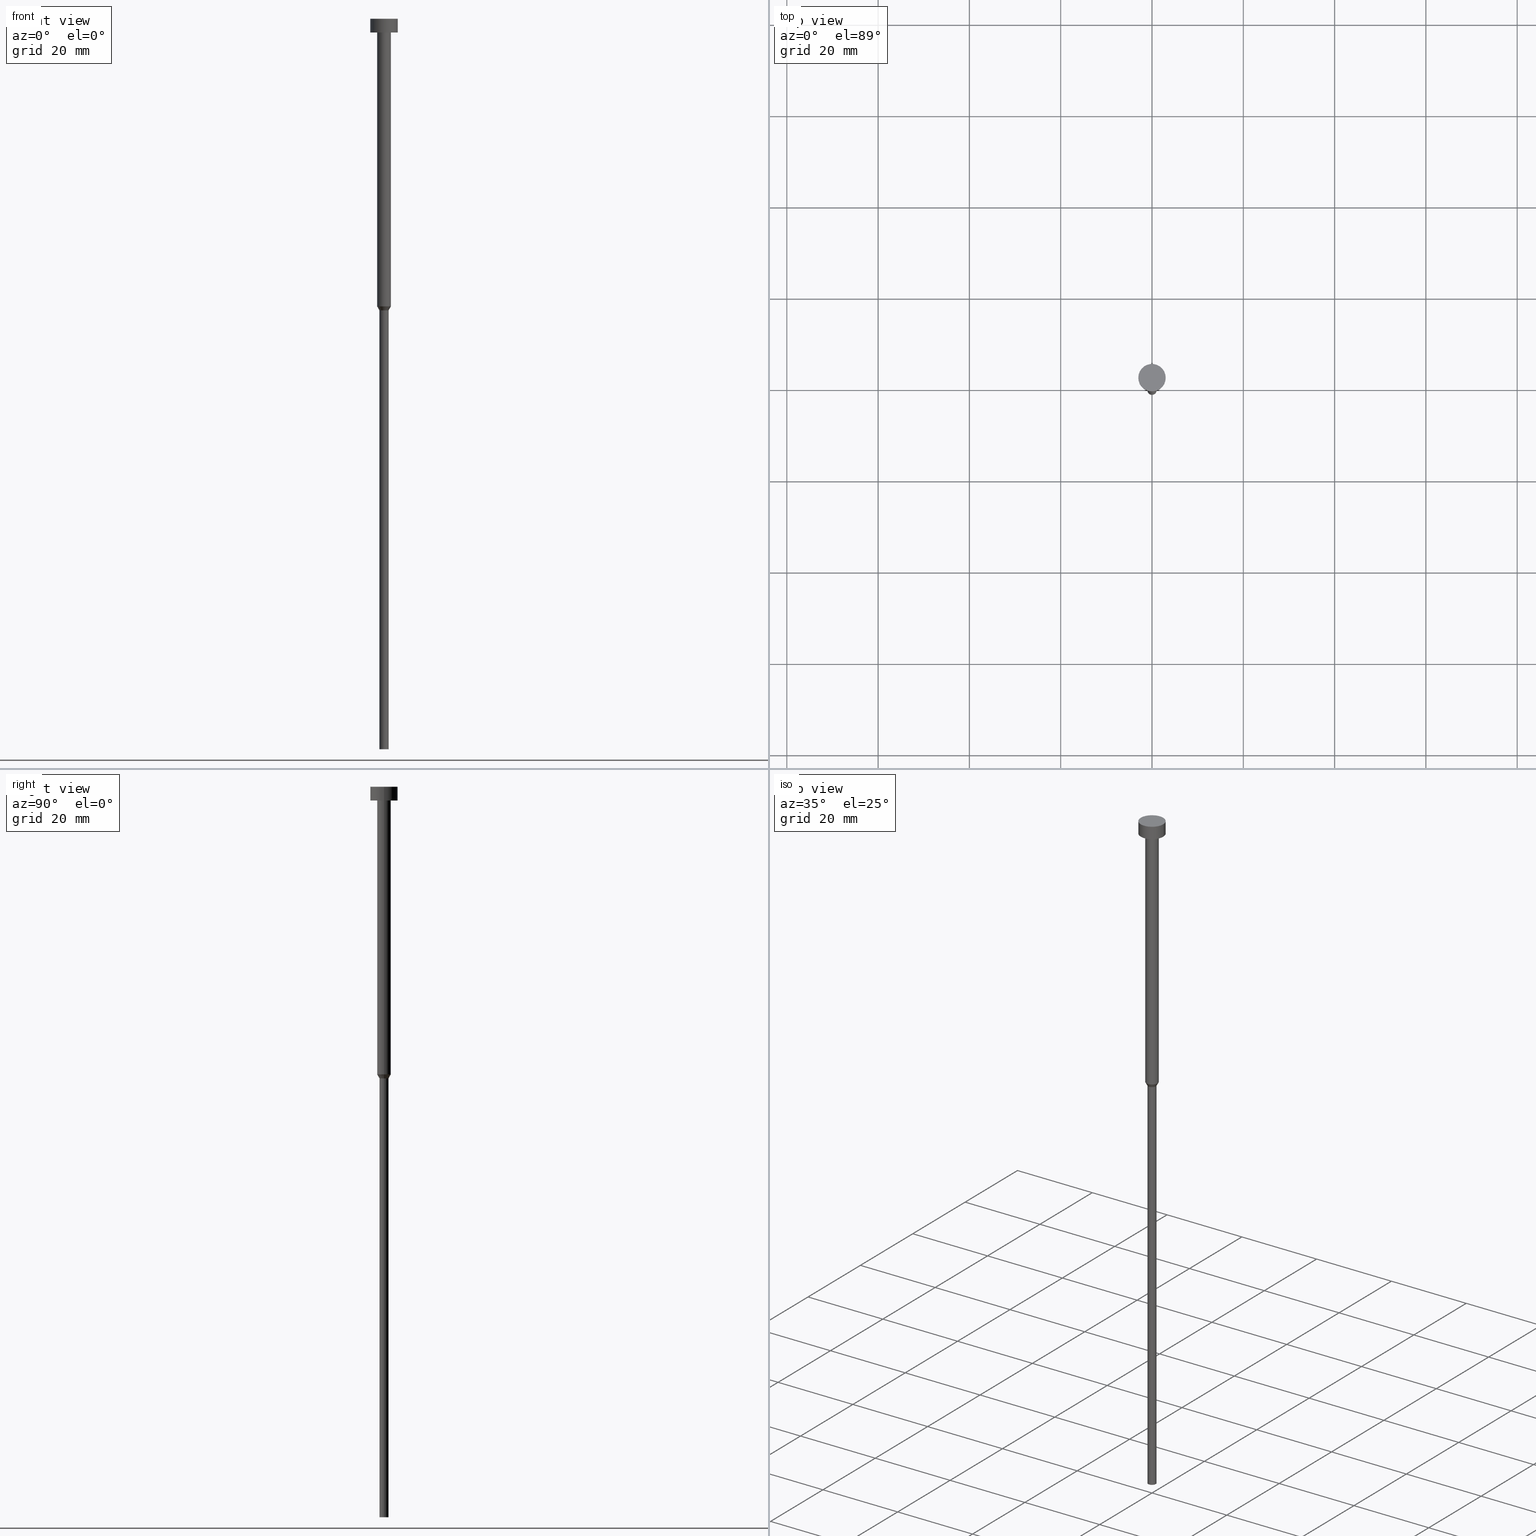
[diagram: canonical four-view strip — front | top / right | iso, engineering-drawing reading convention]
A machine part, canonical four-view strip (front | top / right | iso — engineering-drawing reading convention). The complete STEP part file that produces these views, byte-faithful:
ISO-10303-21;
HEADER;
FILE_DESCRIPTION (( 'STEP AP203' ),
    '1' );
FILE_NAME ('cb4e.STEP',
    '2023-02-13T10:01:25',
    ( '' ),
    ( '' ),
    'SwSTEP 2.0',
    'SolidWorks 2019',
    '' );
FILE_SCHEMA (( 'CONFIG_CONTROL_DESIGN' ));
ENDSEC;

DATA;
#1 = VERTEX_POINT ( 'NONE', #85 ) ;
#2 = EDGE_LOOP ( 'NONE', ( #50, #145 ) ) ;
#3 = CARTESIAN_POINT ( 'NONE',  ( 0.000000000000000000, 0.000000000000000000, -63.00000000000000000 ) ) ;
#4 = AXIS2_PLACEMENT_3D ( 'NONE', #125, #95, #208 ) ;
#5 = CIRCLE ( 'NONE', #106, 3.000000000000000000 ) ;
#6 = CALENDAR_DATE ( 2023, 13, 2 ) ;
#7 = PLANE ( 'NONE',  #101 ) ;
#8 = CARTESIAN_POINT ( 'NONE',  ( 0.000000000000000000, 0.000000000000000000, 0.000000000000000000 ) ) ;
#9 = DIRECTION ( 'NONE',  ( -1.000000000000000000, 0.000000000000000000, -0.000000000000000000 ) ) ;
#10 = EDGE_CURVE ( 'NONE', #86, #168, #251, .T. ) ;
#11 = DIRECTION ( 'NONE',  ( -0.000000000000000000, -0.000000000000000000, 1.000000000000000000 ) ) ;
#12 = DIRECTION ( 'NONE',  ( -0.000000000000000000, -0.000000000000000000, 1.000000000000000000 ) ) ;
#13 = DIRECTION ( 'NONE',  ( 1.000000000000000000, 0.000000000000000000, 0.000000000000000000 ) ) ;
#14 =( LENGTH_UNIT ( ) NAMED_UNIT ( * ) SI_UNIT ( .MILLI., .METRE. ) );
#15 = ADVANCED_FACE ( 'NONE', ( #332, #232 ), #7, .T. ) ;
#16 = APPROVAL_PERSON_ORGANIZATION ( #279, #204, #193 ) ;
#17 = LINE ( 'NONE', #244, #155 ) ;
#18 = FACE_OUTER_BOUND ( 'NONE', #117, .T. ) ;
#19 = EDGE_CURVE ( 'NONE', #86, #1, #148, .T. ) ;
#20 = DIRECTION ( 'NONE',  ( 1.000000000000000000, 0.000000000000000000, 0.000000000000000000 ) ) ;
#21 = PERSON_AND_ORGANIZATION ( #353, #77 ) ;
#22 = EDGE_LOOP ( 'NONE', ( #25, #28 ) ) ;
#23 = VERTEX_POINT ( 'NONE', #206 ) ;
#24 = CALENDAR_DATE ( 2023, 13, 2 ) ;
#25 = ORIENTED_EDGE ( 'NONE', *, *, #296, .T. ) ;
#26 = AXIS2_PLACEMENT_3D ( 'NONE', #339, #230, #154 ) ;
#27 = ORIENTED_EDGE ( 'NONE', *, *, #163, .T. ) ;
#28 = ORIENTED_EDGE ( 'NONE', *, *, #249, .T. ) ;
#29 = ORIENTED_EDGE ( 'NONE', *, *, #10, .F. ) ;
#30 = CC_DESIGN_DATE_AND_TIME_ASSIGNMENT ( #120, #220, ( #292 ) ) ;
#31 = CARTESIAN_POINT ( 'NONE',  ( 1.000000000000000000, 0.000000000000000000, -63.86602540378444104 ) ) ;
#32 = AXIS2_PLACEMENT_3D ( 'NONE', #234, #259, #209 ) ;
#33 = VECTOR ( 'NONE', #340, 1000.000000000000000 ) ;
#34 = MECHANICAL_CONTEXT ( 'NONE', #345, 'mechanical' ) ;
#35 = FACE_OUTER_BOUND ( 'NONE', #118, .T. ) ;
#36 = EDGE_CURVE ( 'NONE', #171, #300, #93, .T. ) ;
#37 = DIRECTION ( 'NONE',  ( 1.000000000000000000, 0.000000000000000000, 0.000000000000000000 ) ) ;
#38 = DIRECTION ( 'NONE',  ( -0.000000000000000000, -0.000000000000000000, 1.000000000000000000 ) ) ;
#39 = AXIS2_PLACEMENT_3D ( 'NONE', #47, #289, #42 ) ;
#40 = DIRECTION ( 'NONE',  ( 1.000000000000000000, 0.000000000000000000, 0.000000000000000000 ) ) ;
#41 = CARTESIAN_POINT ( 'NONE',  ( -1.500000000000000000, 1.836970198721029934E-16, -63.00000000000000000 ) ) ;
#42 = DIRECTION ( 'NONE',  ( 1.000000000000000000, 0.000000000000000000, 0.000000000000000000 ) ) ;
#43 = CIRCLE ( 'NONE', #32, 3.000000000000000000 ) ;
#44 = CIRCLE ( 'NONE', #96, 1.500000000000000000 ) ;
#45 = DIRECTION ( 'NONE',  ( -0.000000000000000000, -0.000000000000000000, 1.000000000000000000 ) ) ;
#46 = CARTESIAN_POINT ( 'NONE',  ( 0.000000000000000000, 0.000000000000000000, -1.836970198721029934E-16 ) ) ;
#47 = CARTESIAN_POINT ( 'NONE',  ( 0.000000000000000000, 0.000000000000000000, -3.000000000000000888 ) ) ;
#48 = CALENDAR_DATE ( 2023, 13, 2 ) ;
#49 = LOCAL_TIME ( 11, 1, 25.00000000000000000, #299 ) ;
#50 = ORIENTED_EDGE ( 'NONE', *, *, #217, .F. ) ;
#51 = ADVANCED_FACE ( 'NONE', ( #260 ), #152, .T. ) ;
#52 = DATE_TIME_ROLE ( 'creation_date' ) ;
#53 = VERTEX_POINT ( 'NONE', #65 ) ;
#54 = APPROVAL ( #164, 'NEUR�EN�' ) ;
#55 = ORIENTED_EDGE ( 'NONE', *, *, #267, .T. ) ;
#56 = CIRCLE ( 'NONE', #201, 3.000000000000000000 ) ;
#57 = EDGE_LOOP ( 'NONE', ( #222, #146, #256, #272 ) ) ;
#58 = APPLICATION_CONTEXT ( 'configuration controlled 3d designs of mechanical parts and assemblies' ) ;
#59 = CC_DESIGN_PERSON_AND_ORGANIZATION_ASSIGNMENT ( #166, #165, ( #87 ) ) ;
#60 = VERTEX_POINT ( 'NONE', #286 ) ;
#61 = CC_DESIGN_PERSON_AND_ORGANIZATION_ASSIGNMENT ( #21, #246, ( #240 ) ) ;
#62 = COORDINATED_UNIVERSAL_TIME_OFFSET ( 1, 0, .AHEAD. ) ;
#63 = CARTESIAN_POINT ( 'NONE',  ( 1.000000000000000000, 0.000000000000000000, -160.0000000000000000 ) ) ;
#64 = APPLICATION_PROTOCOL_DEFINITION ( 'international standard', 'config_control_design', 1994, #58 ) ;
#65 = CARTESIAN_POINT ( 'NONE',  ( -3.000000000000000000, 3.673940397442059868E-16, -3.673940397442059868E-16 ) ) ;
#66 = CIRCLE ( 'NONE', #39, 1.500000000000000000 ) ;
#67 = CARTESIAN_POINT ( 'NONE',  ( 0.000000000000000000, 0.000000000000000000, -63.86602540378444104 ) ) ;
#68 = CARTESIAN_POINT ( 'NONE',  ( 0.000000000000000000, 0.000000000000000000, 0.000000000000000000 ) ) ;
#69 = DESIGN_CONTEXT ( 'detailed design', #58, 'design' ) ;
#70 = CARTESIAN_POINT ( 'NONE',  ( 0.000000000000000000, 0.000000000000000000, 0.000000000000000000 ) ) ;
#71 = AXIS2_PLACEMENT_3D ( 'NONE', #149, #121, #307 ) ;
#72 = ADVANCED_FACE ( 'NONE', ( #119 ), #189, .T. ) ;
#73 = PLANE ( 'NONE',  #314 ) ;
#74 = CARTESIAN_POINT ( 'NONE',  ( 3.000000000000000000, 0.000000000000000000, -3.673940397442059868E-16 ) ) ;
#75 = CYLINDRICAL_SURFACE ( 'NONE', #337, 3.000000000000000000 ) ;
#76 = CIRCLE ( 'NONE', #326, 3.000000000000000000 ) ;
#77 = ORGANIZATION ( 'NEUR�EN�', 'NEUR�EN�', '' ) ;
#78 = FACE_OUTER_BOUND ( 'NONE', #351, .T. ) ;
#79 = DIRECTION ( 'NONE',  ( -0.000000000000000000, -0.000000000000000000, 1.000000000000000000 ) ) ;
#80 = ORIENTED_EDGE ( 'NONE', *, *, #132, .F. ) ;
#81 = ADVANCED_FACE ( 'NONE', ( #124 ), #281, .T. ) ;
#82 = AXIS2_PLACEMENT_3D ( 'NONE', #203, #38, #151 ) ;
#83 = APPROVAL_STATUS ( 'not_yet_approved' ) ;
#84 = CIRCLE ( 'NONE', #283, 1.000000000000000000 ) ;
#85 = CARTESIAN_POINT ( 'NONE',  ( -1.000000000000000000, 1.224646799147353207E-16, -160.0000000000000000 ) ) ;
#86 = VERTEX_POINT ( 'NONE', #63 ) ;
#87 = PRODUCT ( 'cb4e', 'cb4e', '', ( #34 ) ) ;
#88 = EDGE_LOOP ( 'NONE', ( #248, #199 ) ) ;
#89 = ORIENTED_EDGE ( 'NONE', *, *, #197, .T. ) ;
#90 = SHAPE_DEFINITION_REPRESENTATION ( #137, #92 ) ;
#91 = DIRECTION ( 'NONE',  ( -0.4999999999999981681, 6.123233995736742617E-17, 0.8660254037844395958 ) ) ;
#92 = ADVANCED_BREP_SHAPE_REPRESENTATION ( 'cb4e', ( #116, #245 ), #342 ) ;
#93 = LINE ( 'NONE', #280, #341 ) ;
#94 = DATE_AND_TIME ( #250, #49 ) ;
#95 = DIRECTION ( 'NONE',  ( -0.000000000000000000, -0.000000000000000000, 1.000000000000000000 ) ) ;
#96 = AXIS2_PLACEMENT_3D ( 'NONE', #134, #107, #192 ) ;
#97 = DIRECTION ( 'NONE',  ( -0.000000000000000000, -0.000000000000000000, 1.000000000000000000 ) ) ;
#98 = LINE ( 'NONE', #261, #200 ) ;
#99 = EDGE_CURVE ( 'NONE', #226, #355, #98, .T. ) ;
#100 = DIRECTION ( 'NONE',  ( -0.000000000000000000, -0.000000000000000000, 1.000000000000000000 ) ) ;
#101 = AXIS2_PLACEMENT_3D ( 'NONE', #334, #262, #9 ) ;
#102 = VECTOR ( 'NONE', #238, 1000.000000000000114 ) ;
#103 = LINE ( 'NONE', #187, #252 ) ;
#104 = APPROVAL ( #207, 'NEUR�EN�' ) ;
#105 = DIRECTION ( 'NONE',  ( 1.000000000000000000, 0.000000000000000000, 0.000000000000000000 ) ) ;
#106 = AXIS2_PLACEMENT_3D ( 'NONE', #243, #269, #105 ) ;
#107 = DIRECTION ( 'NONE',  ( -0.000000000000000000, -0.000000000000000000, 1.000000000000000000 ) ) ;
#108 = ORIENTED_EDGE ( 'NONE', *, *, #36, .F. ) ;
#109 = PERSON_AND_ORGANIZATION_ROLE ( 'creator' ) ;
#110 = EDGE_LOOP ( 'NONE', ( #327, #302, #202, #275 ) ) ;
#111 = AXIS2_PLACEMENT_3D ( 'NONE', #309, #284, #40 ) ;
#112 = PERSON_AND_ORGANIZATION_ROLE ( 'classification_officer' ) ;
#113 = LOCAL_TIME ( 11, 1, 25.00000000000000000, #297 ) ;
#114 = ORIENTED_EDGE ( 'NONE', *, *, #10, .T. ) ;
#115 = ADVANCED_FACE ( 'NONE', ( #35 ), #174, .T. ) ;
#116 = MANIFOLD_SOLID_BREP ( 'Rotovat1', #176 ) ;
#117 = EDGE_LOOP ( 'NONE', ( #198, #254 ) ) ;
#118 = EDGE_LOOP ( 'NONE', ( #278, #295, #343, #108 ) ) ;
#119 = FACE_OUTER_BOUND ( 'NONE', #143, .T. ) ;
#120 = DATE_AND_TIME ( #6, #177 ) ;
#121 = DIRECTION ( 'NONE',  ( -0.000000000000000000, -0.000000000000000000, 1.000000000000000000 ) ) ;
#122 = EDGE_CURVE ( 'NONE', #168, #226, #291, .T. ) ;
#123 = DIRECTION ( 'NONE',  ( 0.000000000000000000, 0.000000000000000000, 1.000000000000000000 ) ) ;
#124 = FACE_OUTER_BOUND ( 'NONE', #110, .T. ) ;
#125 = CARTESIAN_POINT ( 'NONE',  ( 0.000000000000000000, 0.000000000000000000, -63.00000000000000000 ) ) ;
#126 = CARTESIAN_POINT ( 'NONE',  ( 0.000000000000000000, 0.000000000000000000, -63.00000000000000000 ) ) ;
#127 = CARTESIAN_POINT ( 'NONE',  ( 0.000000000000000000, 0.000000000000000000, -63.86602540378444104 ) ) ;
#128 = DIRECTION ( 'NONE',  ( 1.000000000000000000, 0.000000000000000000, 0.000000000000000000 ) ) ;
#129 = CIRCLE ( 'NONE', #26, 1.500000000000000000 ) ;
#130 = AXIS2_PLACEMENT_3D ( 'NONE', #212, #293, #214 ) ;
#131 = CARTESIAN_POINT ( 'NONE',  ( -1.000000000000000000, 1.224646799147353207E-16, -63.86602540378444104 ) ) ;
#132 = EDGE_CURVE ( 'NONE', #53, #253, #43, .T. ) ;
#133 = DIRECTION ( 'NONE',  ( -0.000000000000000000, -0.000000000000000000, 1.000000000000000000 ) ) ;
#134 = CARTESIAN_POINT ( 'NONE',  ( 0.000000000000000000, 0.000000000000000000, -3.000000000000000888 ) ) ;
#135 = APPROVAL_DATE_TIME ( #352, #54 ) ;
#136 = COORDINATED_UNIVERSAL_TIME_OFFSET ( 1, 0, .AHEAD. ) ;
#137 = PRODUCT_DEFINITION_SHAPE ( 'NONE', 'NONE',  #347 ) ;
#138 = PRODUCT_RELATED_PRODUCT_CATEGORY ( 'detail', '', ( #87 ) ) ;
#139 = ORIENTED_EDGE ( 'NONE', *, *, #19, .T. ) ;
#140 = ORIENTED_EDGE ( 'NONE', *, *, #223, .T. ) ;
#141 = APPROVAL_PERSON_ORGANIZATION ( #205, #104, #273 ) ;
#142 = LOCAL_TIME ( 11, 1, 25.00000000000000000, #136 ) ;
#143 = EDGE_LOOP ( 'NONE', ( #277, #194, #221, #298 ) ) ;
#144 = CC_DESIGN_PERSON_AND_ORGANIZATION_ASSIGNMENT ( #150, #109, ( #347 ) ) ;
#145 = ORIENTED_EDGE ( 'NONE', *, *, #167, .F. ) ;
#146 = ORIENTED_EDGE ( 'NONE', *, *, #323, .T. ) ;
#147 = COORDINATED_UNIVERSAL_TIME_OFFSET ( 1, 0, .AHEAD. ) ;
#148 = CIRCLE ( 'NONE', #71, 1.000000000000000000 ) ;
#149 = CARTESIAN_POINT ( 'NONE',  ( 0.000000000000000000, 0.000000000000000000, -160.0000000000000000 ) ) ;
#150 = PERSON_AND_ORGANIZATION ( #353, #77 ) ;
#151 = DIRECTION ( 'NONE',  ( 1.000000000000000000, 0.000000000000000000, 0.000000000000000000 ) ) ;
#152 = CYLINDRICAL_SURFACE ( 'NONE', #111, 3.000000000000000000 ) ;
#153 = EDGE_CURVE ( 'NONE', #171, #355, #129, .T. ) ;
#154 = DIRECTION ( 'NONE',  ( 1.000000000000000000, 0.000000000000000000, 0.000000000000000000 ) ) ;
#155 = VECTOR ( 'NONE', #290, 1000.000000000000000 ) ;
#156 = AXIS2_PLACEMENT_3D ( 'NONE', #46, #294, #264 ) ;
#157 = DIRECTION ( 'NONE',  ( -0.000000000000000000, -0.000000000000000000, 1.000000000000000000 ) ) ;
#158 = CARTESIAN_POINT ( 'NONE',  ( 1.500000000000000000, 0.000000000000000000, -3.000000000000000888 ) ) ;
#159 = AXIS2_PLACEMENT_3D ( 'NONE', #67, #11, #287 ) ;
#160 = LOCAL_TIME ( 11, 1, 25.00000000000000000, #62 ) ;
#161 = FACE_OUTER_BOUND ( 'NONE', #88, .T. ) ;
#162 = FACE_OUTER_BOUND ( 'NONE', #57, .T. ) ;
#163 = EDGE_CURVE ( 'NONE', #355, #171, #313, .T. ) ;
#164 = APPROVAL_STATUS ( 'not_yet_approved' ) ;
#165 = PERSON_AND_ORGANIZATION_ROLE ( 'design_owner' ) ;
#166 = PERSON_AND_ORGANIZATION ( #353, #77 ) ;
#167 = EDGE_CURVE ( 'NONE', #274, #23, #76, .T. ) ;
#168 = VERTEX_POINT ( 'NONE', #31 ) ;
#169 = ORIENTED_EDGE ( 'NONE', *, *, #249, .F. ) ;
#170 = AXIS2_PLACEMENT_3D ( 'NONE', #70, #100, #190 ) ;
#171 = VERTEX_POINT ( 'NONE', #235 ) ;
#172 = ORIENTED_EDGE ( 'NONE', *, *, #323, .F. ) ;
#173 = PERSON_AND_ORGANIZATION ( #353, #77 ) ;
#174 = CYLINDRICAL_SURFACE ( 'NONE', #82, 1.500000000000000000 ) ;
#175 = DIRECTION ( 'NONE',  ( 1.000000000000000000, 0.000000000000000000, 0.000000000000000000 ) ) ;
#176 = CLOSED_SHELL ( 'NONE', ( #276, #115, #72, #311, #242, #186, #81, #191, #15, #51, #228 ) ) ;
#177 = LOCAL_TIME ( 11, 1, 25.00000000000000000, #147 ) ;
#178 = DIRECTION ( 'NONE',  ( -0.000000000000000000, -0.000000000000000000, 1.000000000000000000 ) ) ;
#179 = CARTESIAN_POINT ( 'NONE',  ( 1.000000000000000000, 0.000000000000000000, 0.000000000000000000 ) ) ;
#180 = DIRECTION ( 'NONE',  ( -0.000000000000000000, -0.000000000000000000, 1.000000000000000000 ) ) ;
#181 = CC_DESIGN_PERSON_AND_ORGANIZATION_ASSIGNMENT ( #173, #247, ( #240 ) ) ;
#182 = DIRECTION ( 'NONE',  ( 1.000000000000000000, 0.000000000000000000, 0.000000000000000000 ) ) ;
#183 = AXIS2_PLACEMENT_3D ( 'NONE', #3, #157, #182 ) ;
#184 = VECTOR ( 'NONE', #79, 1000.000000000000000 ) ;
#185 = CARTESIAN_POINT ( 'NONE',  ( -1.000000000000000000, 1.224646799147353207E-16, 0.000000000000000000 ) ) ;
#186 = ADVANCED_FACE ( 'NONE', ( #338 ), #310, .T. ) ;
#187 = CARTESIAN_POINT ( 'NONE',  ( -1.500000000000000000, 1.836970198721029934E-16, 0.000000000000000000 ) ) ;
#188 = CARTESIAN_POINT ( 'NONE',  ( 1.500000000000000000, 0.000000000000000000, -63.00000000000000000 ) ) ;
#189 = CONICAL_SURFACE ( 'NONE', #183, 1.500000000000000000, 0.5235987755982968173 ) ;
#190 = DIRECTION ( 'NONE',  ( 1.000000000000000000, 0.000000000000000000, 0.000000000000000000 ) ) ;
#191 = ADVANCED_FACE ( 'NONE', ( #211 ), #312, .T. ) ;
#192 = DIRECTION ( 'NONE',  ( 1.000000000000000000, 0.000000000000000000, 0.000000000000000000 ) ) ;
#193 = APPROVAL_ROLE ( '' ) ;
#194 = ORIENTED_EDGE ( 'NONE', *, *, #99, .T. ) ;
#195 = CC_DESIGN_APPROVAL ( #104, ( #347 ) ) ;
#196 = ORIENTED_EDGE ( 'NONE', *, *, #122, .F. ) ;
#197 = EDGE_CURVE ( 'NONE', #23, #253, #17, .T. ) ;
#198 = ORIENTED_EDGE ( 'NONE', *, *, #19, .F. ) ;
#199 = ORIENTED_EDGE ( 'NONE', *, *, #132, .T. ) ;
#200 = VECTOR ( 'NONE', #91, 1000.000000000000114 ) ;
#201 = AXIS2_PLACEMENT_3D ( 'NONE', #318, #45, #216 ) ;
#202 = ORIENTED_EDGE ( 'NONE', *, *, #328, .T. ) ;
#203 = CARTESIAN_POINT ( 'NONE',  ( 0.000000000000000000, 0.000000000000000000, 0.000000000000000000 ) ) ;
#204 = APPROVAL ( #83, 'NEUR�EN�' ) ;
#205 = PERSON_AND_ORGANIZATION ( #353, #77 ) ;
#206 = CARTESIAN_POINT ( 'NONE',  ( 3.000000000000000000, 0.000000000000000000, -3.000000000000000888 ) ) ;
#207 = APPROVAL_STATUS ( 'not_yet_approved' ) ;
#208 = DIRECTION ( 'NONE',  ( 1.000000000000000000, 0.000000000000000000, 0.000000000000000000 ) ) ;
#209 = DIRECTION ( 'NONE',  ( 1.000000000000000000, 0.000000000000000000, 0.000000000000000000 ) ) ;
#210 = UNCERTAINTY_MEASURE_WITH_UNIT (LENGTH_MEASURE( 1.000000000000000082E-05 ), #14, 'distance_accuracy_value', 'NONE');
#211 = FACE_OUTER_BOUND ( 'NONE', #330, .T. ) ;
#212 = CARTESIAN_POINT ( 'NONE',  ( 0.000000000000000000, 0.000000000000000000, -160.0000000000000000 ) ) ;
#213 = AXIS2_PLACEMENT_3D ( 'NONE', #241, #346, #13 ) ;
#214 = DIRECTION ( 'NONE',  ( 1.000000000000000000, 0.000000000000000000, 0.000000000000000000 ) ) ;
#215 = ORIENTED_EDGE ( 'NONE', *, *, #267, .F. ) ;
#216 = DIRECTION ( 'NONE',  ( 1.000000000000000000, 0.000000000000000000, 0.000000000000000000 ) ) ;
#217 = EDGE_CURVE ( 'NONE', #23, #274, #56, .T. ) ;
#218 = DIRECTION ( 'NONE',  ( 0.000000000000000000, 0.000000000000000000, -1.000000000000000000 ) ) ;
#219 = CARTESIAN_POINT ( 'NONE',  ( -3.000000000000000000, 3.673940397442059868E-16, -3.000000000000000888 ) ) ;
#220 = DATE_TIME_ROLE ( 'classification_date' ) ;
#221 = ORIENTED_EDGE ( 'NONE', *, *, #153, .F. ) ;
#222 = ORIENTED_EDGE ( 'NONE', *, *, #217, .T. ) ;
#223 = EDGE_CURVE ( 'NONE', #1, #86, #321, .T. ) ;
#224 = CC_DESIGN_SECURITY_CLASSIFICATION ( #292, ( #240 ) ) ;
#225 = APPROVAL_ROLE ( '' ) ;
#226 = VERTEX_POINT ( 'NONE', #131 ) ;
#227 = ORIENTED_EDGE ( 'NONE', *, *, #317, .F. ) ;
#228 = ADVANCED_FACE ( 'NONE', ( #161 ), #268, .T. ) ;
#229 = ORIENTED_EDGE ( 'NONE', *, *, #263, .F. ) ;
#230 = DIRECTION ( 'NONE',  ( -0.000000000000000000, -0.000000000000000000, 1.000000000000000000 ) ) ;
#231 = APPLICATION_PROTOCOL_DEFINITION ( 'international standard', 'config_control_design', 1994, #345 ) ;
#232 = FACE_OUTER_BOUND ( 'NONE', #2, .T. ) ;
#233 = APPROVAL_DATE_TIME ( #335, #104 ) ;
#234 = CARTESIAN_POINT ( 'NONE',  ( 0.000000000000000000, 0.000000000000000000, -3.673940397442059868E-16 ) ) ;
#235 = CARTESIAN_POINT ( 'NONE',  ( 1.500000000000000000, 0.000000000000000000, -63.00000000000000000 ) ) ;
#236 = DIRECTION ( 'NONE',  ( 1.000000000000000000, 0.000000000000000000, 0.000000000000000000 ) ) ;
#237 = LINE ( 'NONE', #344, #33 ) ;
#238 = DIRECTION ( 'NONE',  ( 0.4999999999999981681, 0.000000000000000000, 0.8660254037844395958 ) ) ;
#239 = VECTOR ( 'NONE', #97, 1000.000000000000000 ) ;
#240 = PRODUCT_DEFINITION_FORMATION_WITH_SPECIFIED_SOURCE ( 'LIBOVOLN�', '', #87, .NOT_KNOWN. ) ;
#241 = CARTESIAN_POINT ( 'NONE',  ( 0.000000000000000000, 0.000000000000000000, 0.000000000000000000 ) ) ;
#242 = ADVANCED_FACE ( 'NONE', ( #18 ), #73, .T. ) ;
#243 = CARTESIAN_POINT ( 'NONE',  ( 0.000000000000000000, 0.000000000000000000, -3.673940397442059868E-16 ) ) ;
#244 = CARTESIAN_POINT ( 'NONE',  ( 3.000000000000000000, 0.000000000000000000, 0.000000000000000000 ) ) ;
#245 = AXIS2_PLACEMENT_3D ( 'NONE', #8, #123, #175 ) ;
#246 = PERSON_AND_ORGANIZATION_ROLE ( 'design_supplier' ) ;
#247 = PERSON_AND_ORGANIZATION_ROLE ( 'creator' ) ;
#248 = ORIENTED_EDGE ( 'NONE', *, *, #306, .T. ) ;
#249 = EDGE_CURVE ( 'NONE', #60, #300, #44, .T. ) ;
#250 = CALENDAR_DATE ( 2023, 13, 2 ) ;
#251 = LINE ( 'NONE', #179, #239 ) ;
#252 = VECTOR ( 'NONE', #133, 1000.000000000000000 ) ;
#253 = VERTEX_POINT ( 'NONE', #74 ) ;
#254 = ORIENTED_EDGE ( 'NONE', *, *, #223, .F. ) ;
#255 = CC_DESIGN_DATE_AND_TIME_ASSIGNMENT ( #94, #52, ( #347 ) ) ;
#256 = ORIENTED_EDGE ( 'NONE', *, *, #306, .F. ) ;
#257 = APPROVAL_DATE_TIME ( #331, #204 ) ;
#258 = APPROVAL_PERSON_ORGANIZATION ( #308, #54, #225 ) ;
#259 = DIRECTION ( 'NONE',  ( -0.000000000000000000, -0.000000000000000000, 1.000000000000000000 ) ) ;
#260 = FACE_OUTER_BOUND ( 'NONE', #324, .T. ) ;
#261 = CARTESIAN_POINT ( 'NONE',  ( -1.500000000000000000, 1.836970198721029934E-16, -63.00000000000000000 ) ) ;
#262 = DIRECTION ( 'NONE',  ( 0.000000000000000000, 0.000000000000000000, -1.000000000000000000 ) ) ;
#263 = EDGE_CURVE ( 'NONE', #355, #60, #103, .T. ) ;
#264 = DIRECTION ( 'NONE',  ( 1.000000000000000000, 0.000000000000000000, 0.000000000000000000 ) ) ;
#265 = DIRECTION ( 'NONE',  ( -0.000000000000000000, -0.000000000000000000, 1.000000000000000000 ) ) ;
#266 = CYLINDRICAL_SURFACE ( 'NONE', #213, 1.000000000000000000 ) ;
#267 = EDGE_CURVE ( 'NONE', #1, #226, #315, .T. ) ;
#268 = PLANE ( 'NONE',  #156 ) ;
#269 = DIRECTION ( 'NONE',  ( -0.000000000000000000, -0.000000000000000000, 1.000000000000000000 ) ) ;
#270 = CALENDAR_DATE ( 2023, 13, 2 ) ;
#271 = CC_DESIGN_APPROVAL ( #204, ( #292 ) ) ;
#272 = ORIENTED_EDGE ( 'NONE', *, *, #197, .F. ) ;
#273 = APPROVAL_ROLE ( '' ) ;
#274 = VERTEX_POINT ( 'NONE', #219 ) ;
#275 = ORIENTED_EDGE ( 'NONE', *, *, #163, .F. ) ;
#276 = ADVANCED_FACE ( 'NONE', ( #162 ), #75, .T. ) ;
#277 = ORIENTED_EDGE ( 'NONE', *, *, #122, .T. ) ;
#278 = ORIENTED_EDGE ( 'NONE', *, *, #153, .T. ) ;
#279 = PERSON_AND_ORGANIZATION ( #353, #77 ) ;
#280 = CARTESIAN_POINT ( 'NONE',  ( 1.500000000000000000, 0.000000000000000000, 0.000000000000000000 ) ) ;
#281 = CONICAL_SURFACE ( 'NONE', #354, 1.500000000000000000, 0.5235987755982968173 ) ;
#282 =( NAMED_UNIT ( * ) SI_UNIT ( $, .STERADIAN. ) SOLID_ANGLE_UNIT ( ) );
#283 = AXIS2_PLACEMENT_3D ( 'NONE', #127, #265, #20 ) ;
#284 = DIRECTION ( 'NONE',  ( -0.000000000000000000, -0.000000000000000000, 1.000000000000000000 ) ) ;
#285 = CARTESIAN_POINT ( 'NONE',  ( 0.000000000000000000, 0.000000000000000000, -3.000000000000000888 ) ) ;
#286 = CARTESIAN_POINT ( 'NONE',  ( -1.500000000000000000, 1.836970198721029934E-16, -3.000000000000000888 ) ) ;
#287 = DIRECTION ( 'NONE',  ( 1.000000000000000000, 0.000000000000000000, 0.000000000000000000 ) ) ;
#288 = LINE ( 'NONE', #188, #102 ) ;
#289 = DIRECTION ( 'NONE',  ( -0.000000000000000000, -0.000000000000000000, 1.000000000000000000 ) ) ;
#290 = DIRECTION ( 'NONE',  ( -0.000000000000000000, -0.000000000000000000, 1.000000000000000000 ) ) ;
#291 = CIRCLE ( 'NONE', #159, 1.000000000000000000 ) ;
#292 = SECURITY_CLASSIFICATION ( '', '', #325 ) ;
#293 = DIRECTION ( 'NONE',  ( -0.000000000000000000, -0.000000000000000000, 1.000000000000000000 ) ) ;
#294 = DIRECTION ( 'NONE',  ( 0.000000000000000000, -0.000000000000000000, 1.000000000000000000 ) ) ;
#295 = ORIENTED_EDGE ( 'NONE', *, *, #263, .T. ) ;
#296 = EDGE_CURVE ( 'NONE', #300, #60, #66, .T. ) ;
#297 = COORDINATED_UNIVERSAL_TIME_OFFSET ( 1, 0, .AHEAD. ) ;
#298 = ORIENTED_EDGE ( 'NONE', *, *, #328, .F. ) ;
#299 = COORDINATED_UNIVERSAL_TIME_OFFSET ( 1, 0, .AHEAD. ) ;
#300 = VERTEX_POINT ( 'NONE', #158 ) ;
#301 = EDGE_LOOP ( 'NONE', ( #215, #140, #114, #227 ) ) ;
#302 = ORIENTED_EDGE ( 'NONE', *, *, #317, .T. ) ;
#303 = CC_DESIGN_APPROVAL ( #54, ( #240 ) ) ;
#304 = ORIENTED_EDGE ( 'NONE', *, *, #36, .T. ) ;
#305 = DIRECTION ( 'NONE',  ( -0.000000000000000000, -0.000000000000000000, 1.000000000000000000 ) ) ;
#306 = EDGE_CURVE ( 'NONE', #253, #53, #5, .T. ) ;
#307 = DIRECTION ( 'NONE',  ( 1.000000000000000000, 0.000000000000000000, 0.000000000000000000 ) ) ;
#308 = PERSON_AND_ORGANIZATION ( #353, #77 ) ;
#309 = CARTESIAN_POINT ( 'NONE',  ( 0.000000000000000000, 0.000000000000000000, 0.000000000000000000 ) ) ;
#310 = CYLINDRICAL_SURFACE ( 'NONE', #319, 1.000000000000000000 ) ;
#311 = ADVANCED_FACE ( 'NONE', ( #78 ), #266, .T. ) ;
#312 = CYLINDRICAL_SURFACE ( 'NONE', #170, 1.500000000000000000 ) ;
#313 = CIRCLE ( 'NONE', #4, 1.500000000000000000 ) ;
#314 = AXIS2_PLACEMENT_3D ( 'NONE', #316, #218, #348 ) ;
#315 = LINE ( 'NONE', #185, #184 ) ;
#316 = CARTESIAN_POINT ( 'NONE',  ( 0.000000000000000000, 0.000000000000000000, -160.0000000000000000 ) ) ;
#317 = EDGE_CURVE ( 'NONE', #226, #168, #84, .T. ) ;
#318 = CARTESIAN_POINT ( 'NONE',  ( 0.000000000000000000, 0.000000000000000000, -3.000000000000000888 ) ) ;
#319 = AXIS2_PLACEMENT_3D ( 'NONE', #68, #180, #236 ) ;
#320 = CARTESIAN_POINT ( 'NONE',  ( 0.000000000000000000, 0.000000000000000000, 0.000000000000000000 ) ) ;
#321 = CIRCLE ( 'NONE', #130, 1.000000000000000000 ) ;
#322 = DIRECTION ( 'NONE',  ( -0.000000000000000000, -0.000000000000000000, 1.000000000000000000 ) ) ;
#323 = EDGE_CURVE ( 'NONE', #274, #53, #237, .T. ) ;
#324 = EDGE_LOOP ( 'NONE', ( #172, #329, #89, #80 ) ) ;
#325 = SECURITY_CLASSIFICATION_LEVEL ( 'unclassified' ) ;
#326 = AXIS2_PLACEMENT_3D ( 'NONE', #285, #12, #37 ) ;
#327 = ORIENTED_EDGE ( 'NONE', *, *, #99, .F. ) ;
#328 = EDGE_CURVE ( 'NONE', #168, #171, #288, .T. ) ;
#329 = ORIENTED_EDGE ( 'NONE', *, *, #167, .T. ) ;
#330 = EDGE_LOOP ( 'NONE', ( #229, #27, #304, #169 ) ) ;
#331 = DATE_AND_TIME ( #48, #113 ) ;
#332 = FACE_BOUND ( 'NONE', #22, .T. ) ;
#333 =( NAMED_UNIT ( * ) PLANE_ANGLE_UNIT ( ) SI_UNIT ( $, .RADIAN. ) );
#334 = CARTESIAN_POINT ( 'NONE',  ( 0.000000000000000000, -3.000000000000000000, -3.000000000000000888 ) ) ;
#335 = DATE_AND_TIME ( #24, #142 ) ;
#336 = DIRECTION ( 'NONE',  ( 1.000000000000000000, 0.000000000000000000, 0.000000000000000000 ) ) ;
#337 = AXIS2_PLACEMENT_3D ( 'NONE', #320, #322, #128 ) ;
#338 = FACE_OUTER_BOUND ( 'NONE', #301, .T. ) ;
#339 = CARTESIAN_POINT ( 'NONE',  ( 0.000000000000000000, 0.000000000000000000, -63.00000000000000000 ) ) ;
#340 = DIRECTION ( 'NONE',  ( -0.000000000000000000, -0.000000000000000000, 1.000000000000000000 ) ) ;
#341 = VECTOR ( 'NONE', #178, 1000.000000000000000 ) ;
#342 =( GEOMETRIC_REPRESENTATION_CONTEXT ( 3 ) GLOBAL_UNCERTAINTY_ASSIGNED_CONTEXT ( ( #210 ) ) GLOBAL_UNIT_ASSIGNED_CONTEXT ( ( #14, #333, #282 ) ) REPRESENTATION_CONTEXT ( 'NONE', 'WORKASPACE' ) );
#343 = ORIENTED_EDGE ( 'NONE', *, *, #296, .F. ) ;
#344 = CARTESIAN_POINT ( 'NONE',  ( -3.000000000000000000, 3.673940397442059868E-16, 0.000000000000000000 ) ) ;
#345 = APPLICATION_CONTEXT ( 'configuration controlled 3d designs of mechanical parts and assemblies' ) ;
#346 = DIRECTION ( 'NONE',  ( -0.000000000000000000, -0.000000000000000000, 1.000000000000000000 ) ) ;
#347 = PRODUCT_DEFINITION ( 'NEZN�M�', '', #240, #69 ) ;
#348 = DIRECTION ( 'NONE',  ( -1.000000000000000000, 0.000000000000000000, -0.000000000000000000 ) ) ;
#349 = PERSON_AND_ORGANIZATION ( #353, #77 ) ;
#350 = CC_DESIGN_PERSON_AND_ORGANIZATION_ASSIGNMENT ( #349, #112, ( #292 ) ) ;
#351 = EDGE_LOOP ( 'NONE', ( #139, #55, #196, #29 ) ) ;
#352 = DATE_AND_TIME ( #270, #160 ) ;
#353 = PERSON ( 'NEUR�EN�', 'NEUR�EN�', 'NEUR�EN�', ('NEUR�EN�'), ('NEUR�EN�'), ('NEUR�EN�') ) ;
#354 = AXIS2_PLACEMENT_3D ( 'NONE', #126, #305, #336 ) ;
#355 = VERTEX_POINT ( 'NONE', #41 ) ;
ENDSEC;
END-ISO-10303-21;
